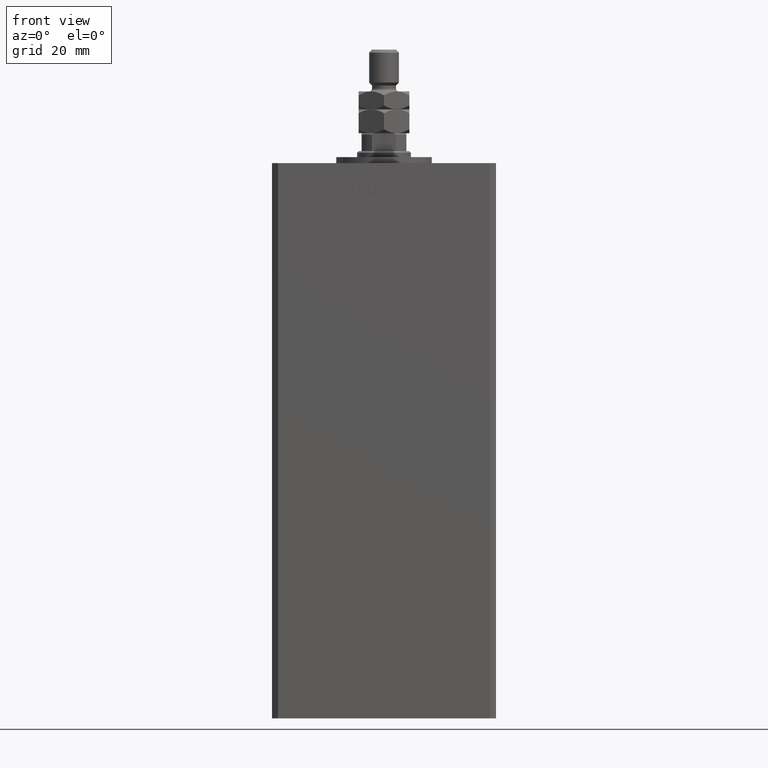
[diagram: clean part render]
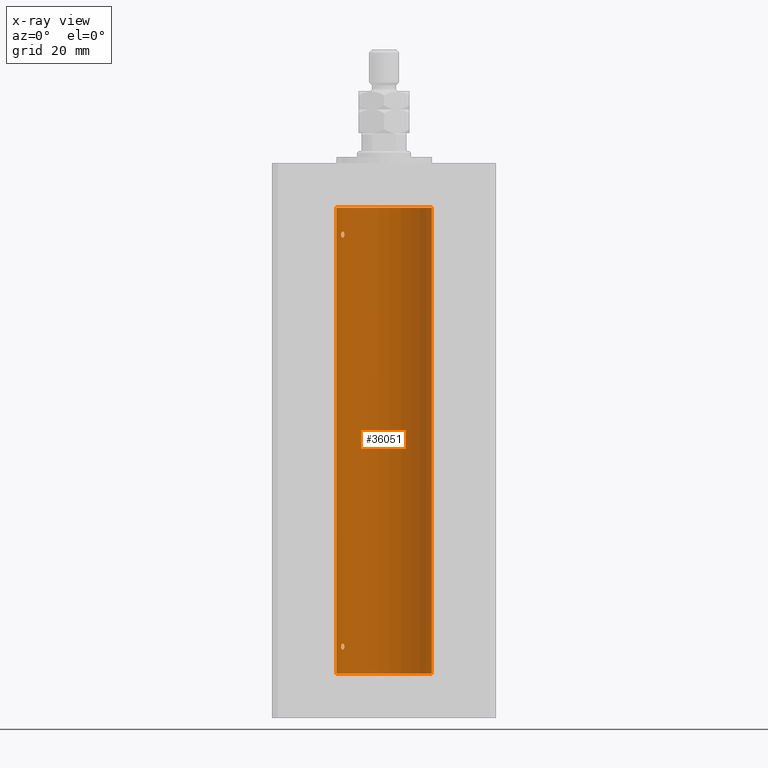
[diagram: x-ray — body ghosted, one internal face saturated and labeled with its STEP entity id]
A machine part, front view, then the same camera in x-ray: the body is ghosted and one INTERNAL B-rep face — a face not visible from any outside direction — is saturated and labeled: STEP entity #36051.
In plain terms, the highlighted cylindrical surface (partial cylindrical patch) has radius 16 mm, axis along (-0, -0, -1).
Its self-contained STEP definition (entity closure, byte-faithful):
#11 = EDGE_LOOP ( 'NONE', ( #27022, #49653 ) ) ;
#705 = VERTEX_POINT ( 'NONE', #40697 ) ;
#1107 = CARTESIAN_POINT ( 'NONE',  ( -13.70792461986390798, 8.256614593260307444, 147.9966215356422765 ) ) ;
#1644 = CARTESIAN_POINT ( 'NONE',  ( -13.22875655532296157, 8.999999999999998224, 147.1406447609177519 ) ) ;
#1938 = CARTESIAN_POINT ( 'NONE',  ( -13.22875655532295447, 8.999999999999996447, 9.000000000000000000 ) ) ;
#2203 = CARTESIAN_POINT ( 'NONE',  ( -14.11621438951177332, 7.533308783217010252, 8.106571071839512754 ) ) ;
#2372 = ORIENTED_EDGE ( 'NONE', *, *, #34819, .T. ) ;
#2483 = CARTESIAN_POINT ( 'NONE',  ( -14.37250282441143767, 7.031013007322936659, 8.716856996037261496 ) ) ;
#2622 = CARTESIAN_POINT ( 'NONE',  ( -14.38749456993815556, 6.999999999999997335, 146.8571474096353882 ) ) ;
#3031 = CARTESIAN_POINT ( 'NONE',  ( -13.37674940693422521, 8.779234808442870630, 8.360244157126784259 ) ) ;
#4487 = AXIS2_PLACEMENT_3D ( 'NONE', #4658, #4916, #16640 ) ;
#4658 = CARTESIAN_POINT ( 'NONE',  ( 0.000000000000000000, 0.000000000000000000, 0.000000000000000000 ) ) ;
#4916 = DIRECTION ( 'NONE',  ( -0.000000000000000000, 0.000000000000000000, 1.000000000000000000 ) ) ;
#5251 = LINE ( 'NONE', #18300, #16148 ) ;
#5739 = CARTESIAN_POINT ( 'NONE',  ( -13.22875655532295802, 8.999999999999996447, 147.0000000000000000 ) ) ;
#6003 = CARTESIAN_POINT ( 'NONE',  ( -13.98878315975728981, 7.767347947480344850, 147.9805461432612503 ) ) ;
#6388 = CARTESIAN_POINT ( 'NONE',  ( -16.00000000000000000, 0.000000000000000000, 156.0000000000000000 ) ) ;
#6567 = CARTESIAN_POINT ( 'NONE',  ( -13.98699950016872151, 7.770591669637119558, 8.018476816648481886 ) ) ;
#6836 = CARTESIAN_POINT ( 'NONE',  ( -13.56386909142669950, 8.487613976483636691, 8.118224297996075478 ) ) ;
#8308 = CARTESIAN_POINT ( 'NONE',  ( -13.49759407097375075, 8.592283911330225621, 146.1840991521276862 ) ) ;
#8566 = CARTESIAN_POINT ( 'NONE',  ( -13.70481462797717320, 8.258098555717507949, 146.0259974772911278 ) ) ;
#8837 = CARTESIAN_POINT ( 'NONE',  ( -13.91838063522421187, 7.892966471903947401, 145.9981483133087181 ) ) ;
#9272 = CARTESIAN_POINT ( 'NONE',  ( -14.37227256866306213, 7.031482256185710433, 147.2844572409764794 ) ) ;
#9459 = CARTESIAN_POINT ( 'NONE',  ( -13.22875655532295447, 8.999999999999996447, 9.140644760917734146 ) ) ;
#9728 = B_SPLINE_CURVE_WITH_KNOTS ( 'NONE', 3,
 ( #5739, #1644, #47547, #46477, #29931, #42406, #1107, #17705, #6003, #10086, #34798, #51380, #43494, #9272, #30476, #30203 ),
 .UNSPECIFIED., .F., .F.,
 ( 4, 2, 2, 2, 2, 2, 2, 4 ),
 ( 0.003377672193071779884, 0.003799209865779893530, 0.004220747538488007176, 0.005063822883904185029, 0.005485360556612275257, 0.005906898229320365484, 0.006328435902028455712, 0.006749973574736545072 ),
 .UNSPECIFIED. ) ;
#10075 = AXIS2_PLACEMENT_3D ( 'NONE', #14562, #51765, #31409 ) ;
#10086 = CARTESIAN_POINT ( 'NONE',  ( -14.11618354197461400, 7.533333301880476895, 147.8932076519334089 ) ) ;
#10753 = FACE_OUTER_BOUND ( 'NONE', #45485, .T. ) ;
#10927 = CARTESIAN_POINT ( 'NONE',  ( -13.91838063522420832, 7.892966471903941184, 7.998148313308679036 ) ) ;
#11063 = CARTESIAN_POINT ( 'NONE',  ( -14.27547848986623080, 7.226527013162187707, 146.3525557301815354 ) ) ;
#11199 = CARTESIAN_POINT ( 'NONE',  ( -13.22875655532295092, 8.999999999999994671, 8.929565622361636201 ) ) ;
#12394 = VERTEX_POINT ( 'NONE', #16418 ) ;
#13076 = EDGE_CURVE ( 'NONE', #18998, #12394, #27133, .T. ) ;
#13276 = CARTESIAN_POINT ( 'NONE',  ( -13.98878315975729159, 7.767347947480346626, 9.980546143261280534 ) ) ;
#13355 = CARTESIAN_POINT ( 'NONE',  ( 0.000000000000000000, 0.000000000000000000, 156.0000000000000000 ) ) ;
#14463 = CARTESIAN_POINT ( 'NONE',  ( -14.31660136508399184, 7.144151923086058176, 8.464621795444474017 ) ) ;
#14562 = CARTESIAN_POINT ( 'NONE',  ( 0.000000000000000000, 0.000000000000000000, 156.0000000000000000 ) ) ;
#14585 = CARTESIAN_POINT ( 'NONE',  ( -13.22875655532295447, 8.999999999999996447, 9.000000000000000000 ) ) ;
#14729 = CARTESIAN_POINT ( 'NONE',  ( -13.70481462797718031, 8.258098555717506173, 8.025997477291133109 ) ) ;
#15271 = CARTESIAN_POINT ( 'NONE',  ( -14.17528142432533755, 7.421143801852455368, 8.173943073538659121 ) ) ;
#16148 = VECTOR ( 'NONE', #51692, 1000.000000000000000 ) ;
#16418 = CARTESIAN_POINT ( 'NONE',  ( -14.38749456993815912, 6.999999999999997335, 9.000000000000000000 ) ) ;
#16640 = DIRECTION ( 'NONE',  ( 1.000000000000000000, 0.000000000000000000, 0.000000000000000000 ) ) ;
#17350 = CARTESIAN_POINT ( 'NONE',  ( -13.37741691572085934, 8.778212469423014142, 9.640882860227099727 ) ) ;
#17470 = EDGE_CURVE ( 'NONE', #705, #20832, #28837, .T. ) ;
#17705 = CARTESIAN_POINT ( 'NONE',  ( -13.91892506969882426, 7.891973478508846895, 148.0015521226324324 ) ) ;
#18300 = CARTESIAN_POINT ( 'NONE',  ( 16.00000000000000000, 1.959434878635765131E-15, 156.0000000000000000 ) ) ;
#18417 = ORIENTED_EDGE ( 'NONE', *, *, #17470, .F. ) ;
#18799 = CARTESIAN_POINT ( 'NONE',  ( -13.77582987033441064, 8.139210687602712824, 8.002110545841816247 ) ) ;
#18998 = VERTEX_POINT ( 'NONE', #14585 ) ;
#20627 = EDGE_CURVE ( 'NONE', #35616, #28769, #9728, .T. ) ;
#20832 = VERTEX_POINT ( 'NONE', #40218 ) ;
#21611 = CARTESIAN_POINT ( 'NONE',  ( -13.77582987033441064, 8.139210687602716376, 146.0021105458418447 ) ) ;
#21702 = CARTESIAN_POINT ( 'NONE',  ( -14.38749456993815912, 6.999999999999997335, 9.000000000000000000 ) ) ;
#21975 = CARTESIAN_POINT ( 'NONE',  ( -13.70792461986390620, 8.256614593260307444, 9.996621535642271184 ) ) ;
#22505 = CARTESIAN_POINT ( 'NONE',  ( -13.22875655532295447, 8.999999999999996447, 9.000000000000000000 ) ) ;
#23294 = CARTESIAN_POINT ( 'NONE',  ( -14.38749456993815912, 6.999999999999998224, 147.0000000000000000 ) ) ;
#23704 = CARTESIAN_POINT ( 'NONE',  ( -14.27547848986622014, 7.226527013162185931, 8.352555730181528304 ) ) ;
#24633 = CARTESIAN_POINT ( 'NONE',  ( -13.98699950016872506, 7.770591669637118670, 146.0184768166485298 ) ) ;
#24894 = CARTESIAN_POINT ( 'NONE',  ( -13.32426099938365383, 8.858246960865843178, 146.4688748775329827 ) ) ;
#25158 = CARTESIAN_POINT ( 'NONE',  ( -13.25390108270225298, 8.962947079338393408, 146.7214357623584817 ) ) ;
#26047 = CARTESIAN_POINT ( 'NONE',  ( -14.31650799088418324, 7.144337649771912879, 9.535522627373689275 ) ) ;
#26831 = ORIENTED_EDGE ( 'NONE', *, *, #20627, .F. ) ;
#26969 = CARTESIAN_POINT ( 'NONE',  ( -13.23400746336172951, 8.992294519018086518, 8.857814559023015732 ) ) ;
#27022 = ORIENTED_EDGE ( 'NONE', *, *, #39789, .F. ) ;
#27133 = B_SPLINE_CURVE_WITH_KNOTS ( 'NONE', 3,
 ( #22505, #9459, #47200, #33905, #17350, #42870, #21975, #50493, #13276, #30925, #51298, #46933, #26047, #38774, #30116, #21702 ),
 .UNSPECIFIED., .F., .F.,
 ( 4, 2, 2, 2, 2, 2, 2, 4 ),
 ( 0.003377672193071777282, 0.003799209865779874882, 0.004220747538487972482, 0.005063822883904168549, 0.005485360556612268318, 0.005906898229320367219, 0.006328435902028466120, 0.006749973574736565889 ),
 .UNSPECIFIED. ) ;
#27509 = CARTESIAN_POINT ( 'NONE',  ( -13.49759407097374897, 8.592283911330223845, 8.184099152127670251 ) ) ;
#27643 = CARTESIAN_POINT ( 'NONE',  ( -14.17528142432533755, 7.421143801852456257, 146.1739430735386804 ) ) ;
#27780 = CARTESIAN_POINT ( 'NONE',  ( -14.38749456993815556, 6.999999999999997335, 8.857147409635411250 ) ) ;
#28769 = VERTEX_POINT ( 'NONE', #44618 ) ;
#28837 = CIRCLE ( 'NONE', #4487, 16.00000000000000000 ) ;
#29239 = CARTESIAN_POINT ( 'NONE',  ( -13.56386909142669772, 8.487613976483638467, 146.1182242979960790 ) ) ;
#29451 = B_SPLINE_CURVE_WITH_KNOTS ( 'NONE', 3,
 ( #35087, #27780, #2483, #14463, #23704, #15271, #2203, #6567, #10927, #18799, #14729, #6836, #27509, #3031, #51932, #31312, #35353, #26969, #11199, #1938 ),
 .UNSPECIFIED., .F., .F.,
 ( 4, 2, 2, 2, 2, 2, 2, 2, 2, 4 ),
 ( 0.000000000000000000, 0.0004222090241339719976, 0.0008444180482679439952, 0.001266627072401915830, 0.001688836096535887990, 0.002111045120669860151, 0.002533254144803831660, 0.002955463168937803604, 0.003166567681004790660, 0.003377672193071777282 ),
 .UNSPECIFIED. ) ;
#29768 = CARTESIAN_POINT ( 'NONE',  ( -13.23400746336172418, 8.992294519018086518, 146.8578145590230122 ) ) ;
#29922 = DIRECTION ( 'NONE',  ( -0.000000000000000000, 0.000000000000000000, 1.000000000000000000 ) ) ;
#29931 = CARTESIAN_POINT ( 'NONE',  ( -13.37741691572086289, 8.778212469423007036, 147.6408828602271228 ) ) ;
#30116 = CARTESIAN_POINT ( 'NONE',  ( -14.38749456993816445, 6.999999999999997335, 9.142625441524202756 ) ) ;
#30203 = CARTESIAN_POINT ( 'NONE',  ( -14.38749456993815912, 6.999999999999998224, 147.0000000000000000 ) ) ;
#30476 = CARTESIAN_POINT ( 'NONE',  ( -14.38749456993816089, 6.999999999999999112, 147.1426254415242454 ) ) ;
#30925 = CARTESIAN_POINT ( 'NONE',  ( -14.11618354197461400, 7.533333301880478672, 9.893207651933416003 ) ) ;
#31312 = CARTESIAN_POINT ( 'NONE',  ( -13.26838749541400198, 8.941532915076040311, 8.656217793921369363 ) ) ;
#31409 = DIRECTION ( 'NONE',  ( -1.000000000000000000, 0.000000000000000000, 0.000000000000000000 ) ) ;
#31541 = EDGE_CURVE ( 'NONE', #28769, #35616, #44332, .T. ) ;
#32026 = CARTESIAN_POINT ( 'NONE',  ( -13.22875655532295802, 8.999999999999996447, 147.0000000000000000 ) ) ;
#32851 = CIRCLE ( 'NONE', #44118, 16.00000000000000000 ) ;
#33155 = VERTEX_POINT ( 'NONE', #6388 ) ;
#33905 = CARTESIAN_POINT ( 'NONE',  ( -13.32457971225032445, 8.857769707964649797, 9.531999662746555302 ) ) ;
#34798 = CARTESIAN_POINT ( 'NONE',  ( -14.17576283486774713, 7.420212263225987925, 147.8252530343043247 ) ) ;
#34819 = EDGE_CURVE ( 'NONE', #33155, #20832, #36879, .T. ) ;
#35087 = CARTESIAN_POINT ( 'NONE',  ( -14.38749456993815912, 6.999999999999997335, 9.000000000000000000 ) ) ;
#35353 = CARTESIAN_POINT ( 'NONE',  ( -13.25390108270225298, 8.962947079338388079, 8.721435762358455079 ) ) ;
#35616 = VERTEX_POINT ( 'NONE', #32026 ) ;
#35766 = CARTESIAN_POINT ( 'NONE',  ( -14.37250282441143945, 7.031013007322937547, 146.7168569960372793 ) ) ;
#36051 = ADVANCED_FACE ( 'NONE', ( #10753, #38716, #47409 ), #42814, .F. ) ;
#36397 = EDGE_CURVE ( 'NONE', #51844, #705, #5251, .T. ) ;
#36879 = LINE ( 'NONE', #50905, #52544 ) ;
#38716 = FACE_BOUND ( 'NONE', #11, .T. ) ;
#38774 = CARTESIAN_POINT ( 'NONE',  ( -14.37227256866306213, 7.031482256185707769, 9.284457240976479397 ) ) ;
#39240 = EDGE_LOOP ( 'NONE', ( #47154, #26831 ) ) ;
#39789 = EDGE_CURVE ( 'NONE', #12394, #18998, #29451, .T. ) ;
#39839 = ORIENTED_EDGE ( 'NONE', *, *, #42580, .T. ) ;
#40218 = CARTESIAN_POINT ( 'NONE',  ( -16.00000000000000000, 0.000000000000000000, 0.000000000000000000 ) ) ;
#40697 = CARTESIAN_POINT ( 'NONE',  ( 16.00000000000000000, 1.959434878635765131E-15, 0.000000000000000000 ) ) ;
#41183 = CARTESIAN_POINT ( 'NONE',  ( -13.26838749541400730, 8.941532915076043864, 146.6562177939213427 ) ) ;
#41438 = CARTESIAN_POINT ( 'NONE',  ( -13.37674940693422698, 8.779234808442867077, 146.3602441571268287 ) ) ;
#42406 = CARTESIAN_POINT ( 'NONE',  ( -13.55800260393082901, 8.498809056167511145, 147.9036434462101397 ) ) ;
#42580 = EDGE_CURVE ( 'NONE', #51844, #33155, #32851, .T. ) ;
#42814 = CYLINDRICAL_SURFACE ( 'NONE', #10075, 16.00000000000000000 ) ;
#42870 = CARTESIAN_POINT ( 'NONE',  ( -13.55800260393082546, 8.498809056167521803, 9.903643446210175227 ) ) ;
#43494 = CARTESIAN_POINT ( 'NONE',  ( -14.31650799088418324, 7.144337649771909327, 147.5355226273736662 ) ) ;
#44118 = AXIS2_PLACEMENT_3D ( 'NONE', #13355, #29922, #46468 ) ;
#44184 = CARTESIAN_POINT ( 'NONE',  ( -14.11621438951178398, 7.533308783217012028, 146.1065710718395110 ) ) ;
#44332 = B_SPLINE_CURVE_WITH_KNOTS ( 'NONE', 3,
 ( #23294, #2622, #35766, #48275, #11063, #27643, #44184, #24633, #8837, #21611, #8566, #29239, #8308, #41438, #24894, #41183, #25158, #29768, #49346, #53679 ),
 .UNSPECIFIED., .F., .F.,
 ( 4, 2, 2, 2, 2, 2, 2, 2, 2, 4 ),
 ( 0.000000000000000000, 0.0004222090241339814844, 0.0008444180482679629687, 0.001266627072401944453, 0.001688836096535925937, 0.002111045120669907422, 0.002533254144803888906, 0.002955463168937870391, 0.003166567681004825354, 0.003377672193071779884 ),
 .UNSPECIFIED. ) ;
#44471 = CARTESIAN_POINT ( 'NONE',  ( 16.00000000000000000, 1.959434878635765131E-15, 156.0000000000000000 ) ) ;
#44618 = CARTESIAN_POINT ( 'NONE',  ( -14.38749456993815912, 6.999999999999998224, 147.0000000000000000 ) ) ;
#45485 = EDGE_LOOP ( 'NONE', ( #45905, #39839, #2372, #18417 ) ) ;
#45905 = ORIENTED_EDGE ( 'NONE', *, *, #36397, .F. ) ;
#46272 = DIRECTION ( 'NONE',  ( -0.000000000000000000, -0.000000000000000000, -1.000000000000000000 ) ) ;
#46468 = DIRECTION ( 'NONE',  ( 1.000000000000000000, 0.000000000000000000, 0.000000000000000000 ) ) ;
#46477 = CARTESIAN_POINT ( 'NONE',  ( -13.32457971225032267, 8.857769707964649797, 147.5319996627465571 ) ) ;
#46933 = CARTESIAN_POINT ( 'NONE',  ( -14.27521483392929014, 7.227035590538633869, 9.647859870688195727 ) ) ;
#47154 = ORIENTED_EDGE ( 'NONE', *, *, #31541, .F. ) ;
#47200 = CARTESIAN_POINT ( 'NONE',  ( -13.24976519864029179, 8.969293778684576779, 9.281535226335156707 ) ) ;
#47409 = FACE_BOUND ( 'NONE', #39240, .T. ) ;
#47547 = CARTESIAN_POINT ( 'NONE',  ( -13.24976519864029179, 8.969293778684573226, 147.2815352263351656 ) ) ;
#48275 = CARTESIAN_POINT ( 'NONE',  ( -14.31660136508398828, 7.144151923086062617, 146.4646217954444296 ) ) ;
#49346 = CARTESIAN_POINT ( 'NONE',  ( -13.22875655532295802, 8.999999999999998224, 146.9295656223616504 ) ) ;
#49653 = ORIENTED_EDGE ( 'NONE', *, *, #13076, .F. ) ;
#50493 = CARTESIAN_POINT ( 'NONE',  ( -13.91892506969882959, 7.891973478508852224, 10.00155212263243953 ) ) ;
#50905 = CARTESIAN_POINT ( 'NONE',  ( -16.00000000000000000, 0.000000000000000000, 156.0000000000000000 ) ) ;
#51298 = CARTESIAN_POINT ( 'NONE',  ( -14.17576283486774535, 7.420212263225985261, 9.825253034304354927 ) ) ;
#51380 = CARTESIAN_POINT ( 'NONE',  ( -14.27521483392929369, 7.227035590538639198, 147.6478598706881940 ) ) ;
#51692 = DIRECTION ( 'NONE',  ( -0.000000000000000000, -0.000000000000000000, -1.000000000000000000 ) ) ;
#51765 = DIRECTION ( 'NONE',  ( -0.000000000000000000, -0.000000000000000000, -1.000000000000000000 ) ) ;
#51844 = VERTEX_POINT ( 'NONE', #44471 ) ;
#51932 = CARTESIAN_POINT ( 'NONE',  ( -13.32426099938365027, 8.858246960865852060, 8.468874877532968526 ) ) ;
#52544 = VECTOR ( 'NONE', #46272, 1000.000000000000000 ) ;
#53679 = CARTESIAN_POINT ( 'NONE',  ( -13.22875655532295802, 8.999999999999996447, 147.0000000000000000 ) ) ;